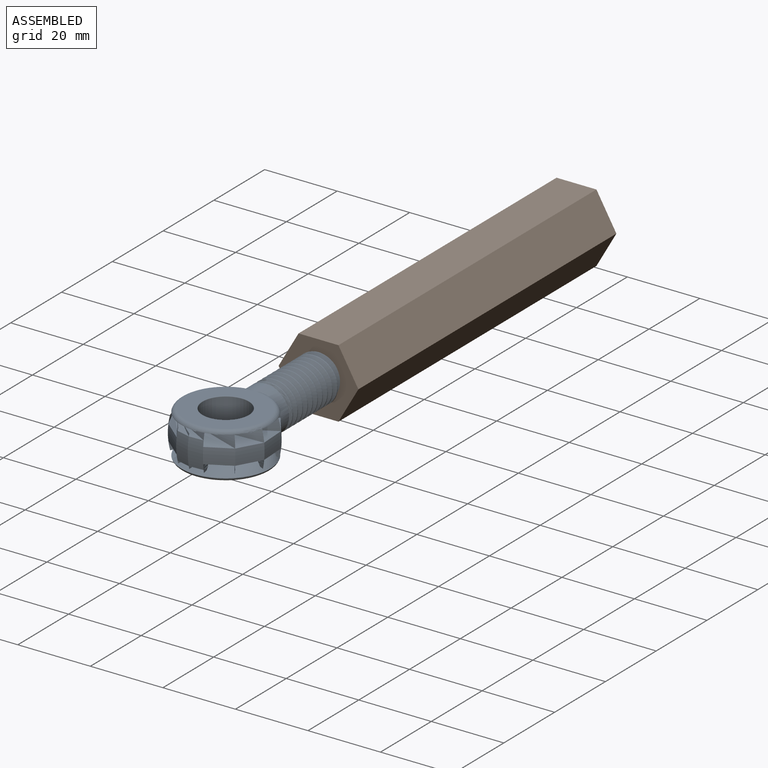
[diagram: assembled view]
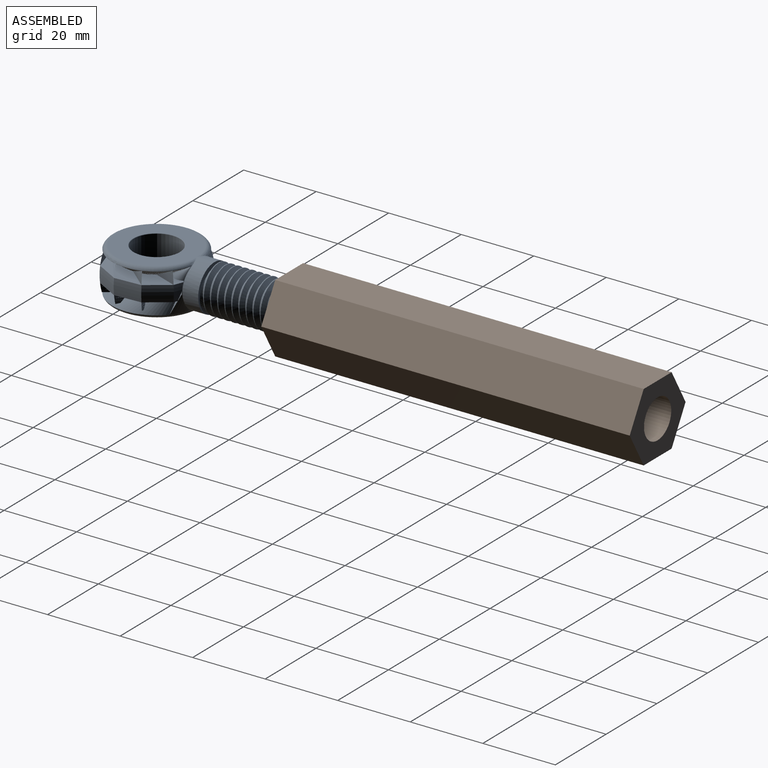
[diagram: assembled view, second angle]
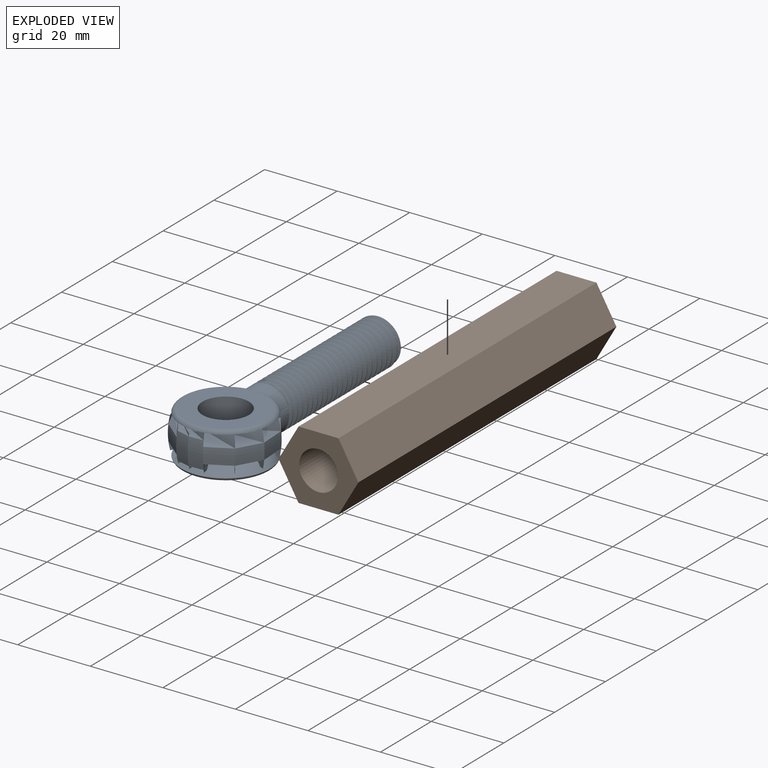
[diagram: exploded view]
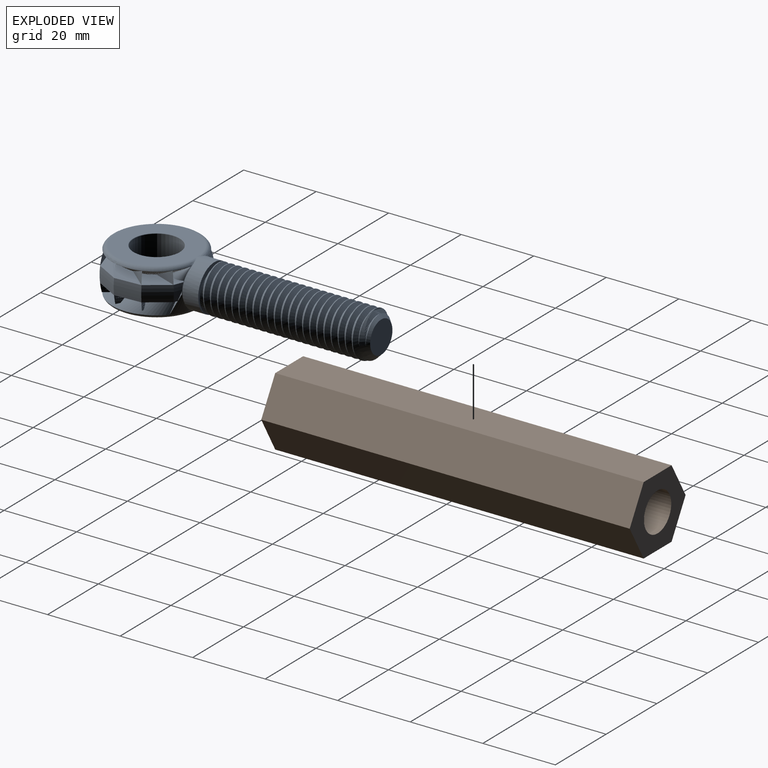
[diagram: exploded view, second angle]
ASSEMBLY  parts=2 mates=2
PART A: 44 faces, bbox 27.5x13.5x76.8 mm
  f0: revolved ~26.13x26.06mm, area 1651.7mm2, adj f1,f2,f37,f40
  f1: torus R=11.08mm, axis (0,-1,0), area 115mm2, adj f0,f4,f36,f41
  f2: torus R=11.08mm, axis (0,-1,0), area 115mm2, adj f0,f3,f38,f39
  f3: plane 22.17x22.17mm, normal (0,-1,0), area 254mm2, adj f2,f43
  f4: plane 22.17x22.17mm, normal (0,1,0), area 254mm2, adj f1,f42
  f5: cylinder r=6.35mm len=12.7mm, axis (0,1,0), area 496.2mm2, adj f42,f43
  f6: cylinder r=6.35mm len=12.7mm, axis (0,0,1), area 172.1mm2, adj f28,f33,f34,f35,f36,f37,f38,f39
  f7: cylinder r=6.35mm len=12.7mm, axis (0,0,1), area 9.7mm2, adj f8,f29,f33,f34
  f8: cylinder r=6.35mm len=12.7mm, axis (0,0,1), area 9.8mm2, adj f7,f9,f33,f34
  f9: cylinder r=6.35mm len=12.7mm, axis (0,0,1), area 9.7mm2, adj f8,f10,f33,f34
  f10: cylinder r=6.35mm len=12.7mm, axis (0,0,1), area 9.8mm2, adj f9,f11,f33,f34
  f11: cylinder r=6.35mm len=12.7mm, axis (0,0,1), area 9.7mm2, adj f10,f12,f33,f34
  f12: cylinder r=6.35mm len=12.7mm, axis (0,0,1), area 9.7mm2, adj f11,f13,f33,f34
  f13: cylinder r=6.35mm len=12.7mm, axis (0,0,1), area 9.7mm2, adj f12,f14,f33,f34
  f14: cylinder r=6.35mm len=12.7mm, axis (0,0,1), area 9.8mm2, adj f13,f15,f33,f34
  f15: cylinder r=6.35mm len=12.7mm, axis (0,0,1), area 9.8mm2, adj f14,f16,f33,f34
  f16: cylinder r=6.35mm len=12.7mm, axis (0,0,1), area 9.7mm2, adj f15,f17,f33,f34
  f17: cylinder r=6.35mm len=12.7mm, axis (0,0,1), area 9.7mm2, adj f16,f18,f33,f34
  f18: cylinder r=6.35mm len=12.7mm, axis (0,0,1), area 9.7mm2, adj f17,f19,f33,f34
  f19: cylinder r=6.35mm len=12.7mm, axis (0,0,1), area 9.8mm2, adj f18,f20,f33,f34
  f20: cylinder r=6.35mm len=12.7mm, axis (0,0,1), area 9.7mm2, adj f19,f21,f33,f34
  f21: cylinder r=6.35mm len=12.7mm, axis (0,0,1), area 9.7mm2, adj f20,f22,f33,f34
  f22: cylinder r=6.35mm len=12.7mm, axis (0,0,1), area 9.8mm2, adj f21,f23,f33,f34
  f23: cylinder r=6.35mm len=12.7mm, axis (0,0,1), area 9.8mm2, adj f22,f24,f33,f34
  f24: cylinder r=6.35mm len=12.7mm, axis (0,0,1), area 9.7mm2, adj f23,f25,f33,f34
  f25: cylinder r=6.35mm len=12.7mm, axis (0,0,1), area 9.8mm2, adj f24,f26,f33,f34
  f26: cylinder r=6.35mm len=12.7mm, axis (0,0,1), area 9.8mm2, adj f25,f27,f33,f34
  f27: cylinder r=6.35mm len=12.7mm, axis (0,0,1), area 9.8mm2, adj f26,f28,f33,f34
  f28: cylinder r=6.35mm len=12.7mm, axis (0,0,1), area 9.7mm2, adj f6,f27,f33,f34
  f29: cylinder r=6.35mm len=4.5mm, axis (0,0,1), area 0.6mm2, adj f7,f30,f34
  f30: cone r=6.35mm half-angle=45deg, axis (0,0,1), area 60.2mm2, adj f29,f31,f32,f33,f34
  f31: plane 8.79x8.79mm, normal (0,0,-1), area 60.7mm2, adj f30
  f32: cylinder r=5.08mm len=45.35mm, axis (0,0,-1), area 244.9mm2, adj f30,f33,f34,f35
  f33: bspline ~46.26x13.35mm, area 1205.3mm2, adj f6,f7,f8,f9,f10,f11,f12,f13
  f34: bspline ~47.63x13.35mm, area 1176.9mm2, adj f6,f7,f8,f9,f10,f11,f12,f13
  f35: plane 13.46x12.98mm, normal (0,0,-1), area 23.4mm2, adj f6,f32,f33,f34
  f36: bspline ~4.02x1.4mm, area 0.2mm2, adj f1,f6,f37
  f37: bspline ~12.15x4.3mm, area 1.9mm2, adj f0,f6,f36,f38
  f38: bspline ~4.02x1.4mm, area 0.2mm2, adj f2,f6,f37
  f39: bspline ~4.02x1.4mm, area 0.2mm2, adj f2,f6,f40
  f40: bspline ~12.15x4.3mm, area 1.9mm2, adj f0,f6,f39,f41
  f41: bspline ~4.02x1.4mm, area 0.2mm2, adj f1,f6,f40
  f42: torus R=6.48mm, axis (0,-1,0), area 8.4mm2, adj f4,f5
  f43: torus R=6.48mm, axis (0,-1,0), area 8.4mm2, adj f3,f5
PART B: 12 faces, bbox 22x101.6x19.1 mm
  f0: plane 101.6x9.53mm, normal (-0.87,0,-0.5), area 1117.4mm2, adj f1,f5,f6,f7
  f1: plane 101.6x11mm, normal (0,0,-1), area 1117.4mm2, adj f0,f2,f6,f7
  f2: plane 101.6x9.53mm, normal (0.87,0,-0.5), area 1117.4mm2, adj f1,f3,f6,f7
  f3: plane 101.6x9.53mm, normal (0.87,0,0.5), area 1117.4mm2, adj f2,f4,f6,f7
  f4: plane 101.6x11mm, normal (0,0,1), area 1117.4mm2, adj f3,f5,f6,f7
  f5: plane 101.6x9.53mm, normal (-0.87,0,0.5), area 1117.4mm2, adj f0,f4,f6,f7
  f6: plane 22x19.05mm, normal (0,1,0), area 224.1mm2, adj f0,f1,f2,f3,f4,f5,f11
  f7: plane 22x19.05mm, normal (0,-1,0), area 224.1mm2, adj f0,f1,f2,f3,f4,f5,f9
  f8: cone r=0mm half-angle=59deg, axis (0,-1,0), area 105.2mm2, adj f9
  f9: cylinder r=5.36mm len=31.26mm, axis (0,-1,0), area 1052.5mm2, adj f7,f8
  f10: cone r=0mm half-angle=59deg, axis (0,1,0), area 105.2mm2, adj f11
  f11: cylinder r=5.36mm len=31.26mm, axis (0,1,0), area 1052.5mm2, adj f6,f10
PLACE A rot(axis=(1,0,0),90deg) t=(16.82,-31.18,23.2)mm
PLACE B t=(16.82,-25.62,23.2)mm fixed
MATE parallel A.f5 <-> B.f1  axis (0,0,-1) through (16.82,-62.14,16.85)mm
MATE revolute A.f6 <-> B.f8  axis (0,1,0) through (16.82,-0.22,23.2)mm
